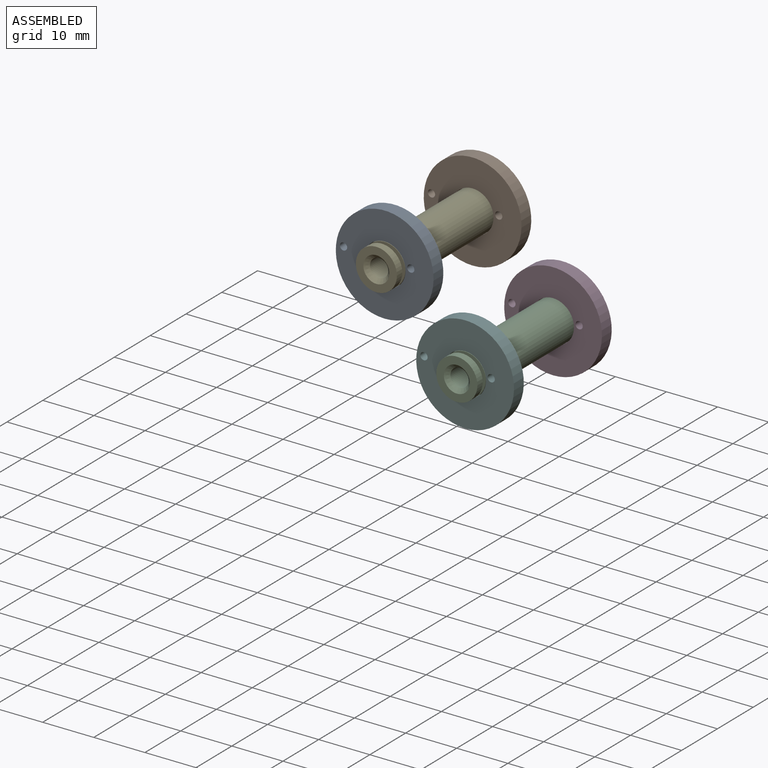
[diagram: assembled view]
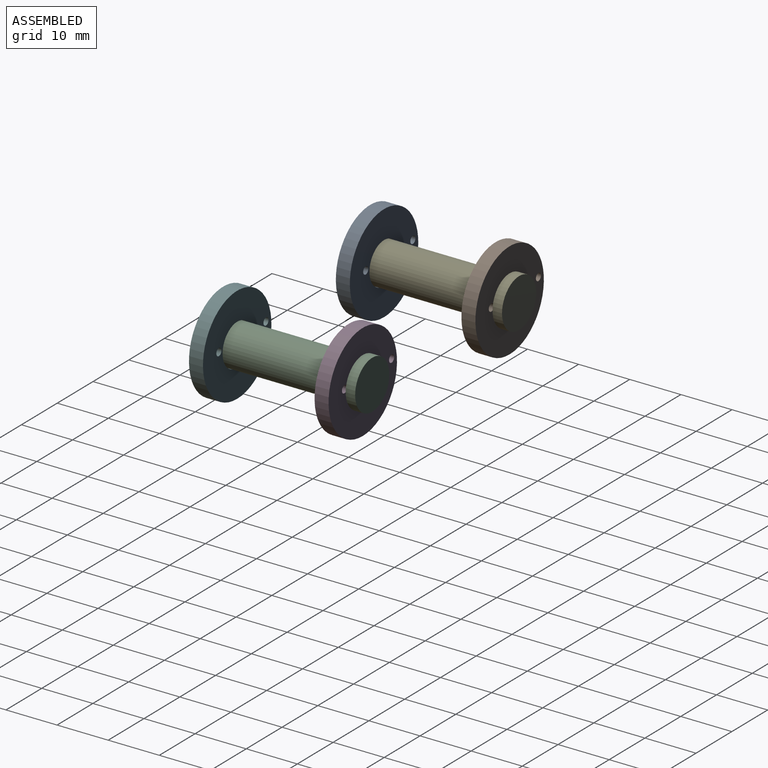
[diagram: assembled view, second angle]
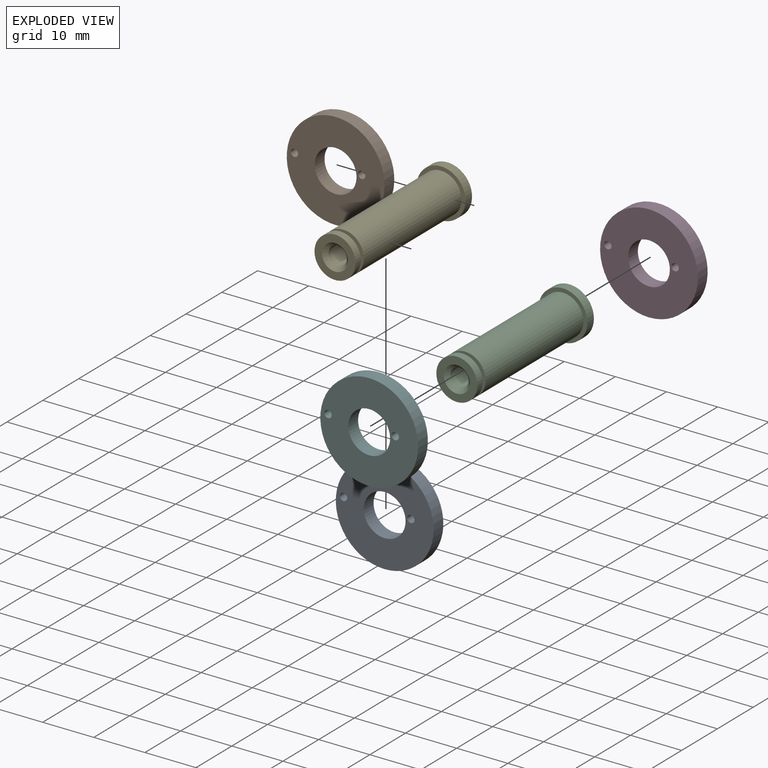
[diagram: exploded view]
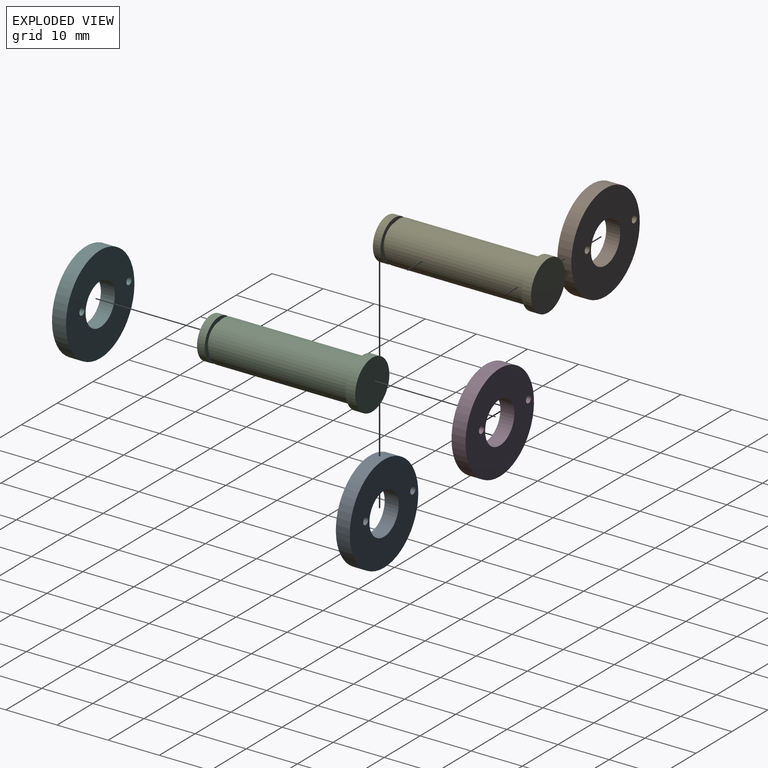
[diagram: exploded view, second angle]
ASSEMBLY  parts=6 mates=4
PART A: 6 faces, bbox 19.1x2.7x19.1 mm
  f0: cylinder r=0.71mm len=2.74mm, axis (0,1,0), area 12.3mm2, adj f4,f5
  f1: cylinder r=0.71mm len=2.74mm, axis (0,1,0), area 12.2mm2, adj f4,f5
  f2: cylinder r=4.09mm len=8.18mm, axis (0,1,0), area 70.3mm2, adj f4,f5
  f3: cylinder r=9.56mm len=19.13mm, axis (0,1,0), area 164.4mm2, adj f4,f5
  f4: plane 19.13x19.13mm, normal (0,-1,0), area 231.6mm2, adj f0,f1,f2,f3
  f5: plane 19.13x19.13mm, normal (0,1,0), area 231.6mm2, adj f0,f1,f2,f3
PART B: same geometry as A
PART C: 12 faces, bbox 9.6x9.6x31.5 mm
  f0: plane 8.03x8.03mm, normal (0,0,-1), area 30.4mm2, adj f1,f10
  f1: cylinder r=4.02mm len=8.03mm, axis (0,0,1), area 37.8mm2, adj f0,f2
  f2: plane 8.03x8.03mm, normal (0,0,1), area 18.9mm2, adj f1,f3
  f3: cylinder r=3.18mm len=6.36mm, axis (0,0,1), area 16.2mm2, adj f2,f4
  f4: plane 8.03x8.03mm, normal (0,0,-1), area 18.9mm2, adj f3,f5
  f5: cylinder r=4.02mm len=27.31mm, axis (0,0,1), area 689mm2, adj f4,f6
  f6: plane 9.56x9.56mm, normal (0,0,-1), area 21.1mm2, adj f5,f7
  f7: cylinder r=4.78mm len=9.56mm, axis (0,0,1), area 55.7mm2, adj f6,f8
  f8: plane 9.56x9.56mm, normal (0,0,1), area 71.7mm2, adj f7
  f9: cylinder r=1.78mm len=8.56mm, axis (0,0,-1), area 95.6mm2, adj f10,f11
  f10: cone r=1.78mm half-angle=45deg, axis (0,0,-1), area 14.6mm2, adj f0,f9
  f11: cone r=0mm half-angle=59deg, axis (0,0,-1), area 11.6mm2, adj f9
PART D: same geometry as A
PART E: same geometry as C
PART F: same geometry as A
PLACE A t=(2.85,-0.05,5.76)mm
PLACE B t=(2.85,24.52,5.76)mm
PLACE C rot(axis=(-1,0,0),90deg) t=(30.09,-15.48,-2.67)mm
PLACE D t=(26.91,12.64,-2.67)mm
PLACE E rot(axis=(-1,0,0),90deg) t=(6.03,-3.6,5.76)mm
PLACE F t=(26.91,-11.93,-2.67)mm
MATE fastened E.f1 <-> A.f2  axis (0,-1,0) through (2.85,-2.78,5.76)mm
MATE fastened C.f1 <-> D.f2  axis (0,-1,0) through (26.91,12.64,-2.67)mm
MATE fastened E.f1 <-> B.f2  axis (0,-1,0) through (2.85,24.52,5.76)mm
MATE fastened C.f1 <-> F.f2  axis (0,-1,0) through (26.91,-14.67,-2.67)mm
